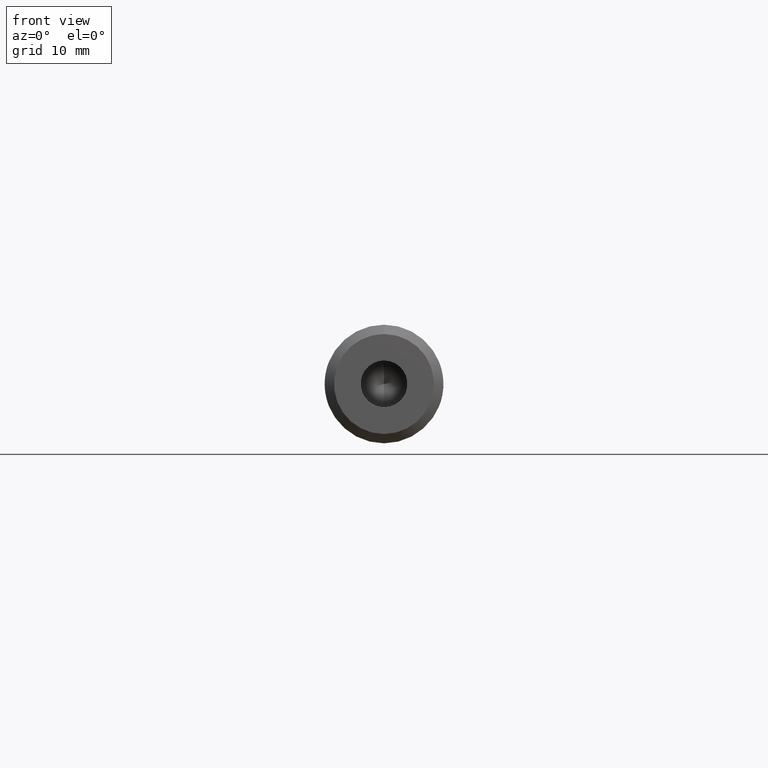
[diagram: clean part render]
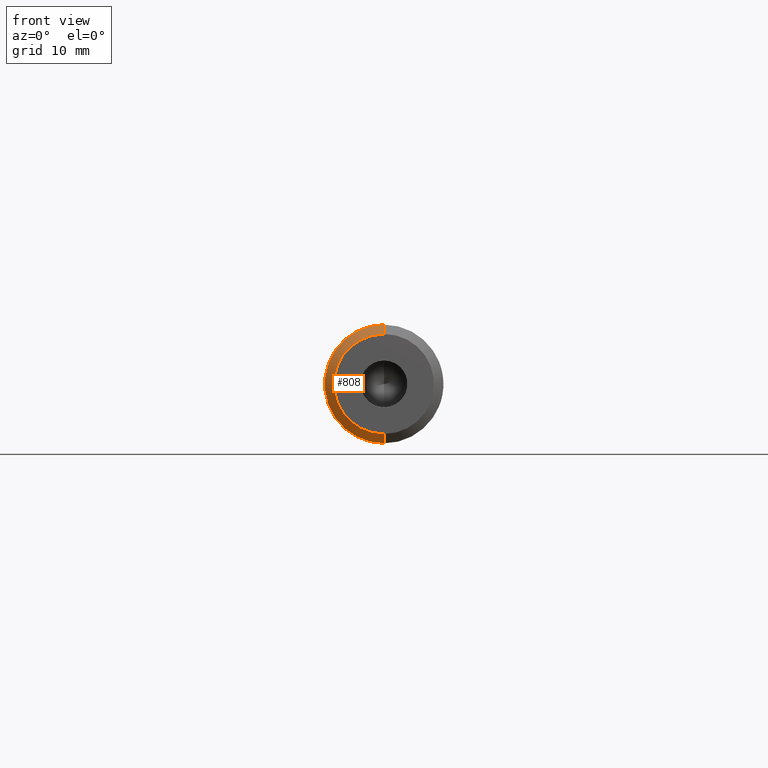
[diagram: same view with one face highlighted and labeled with its STEP entity id]
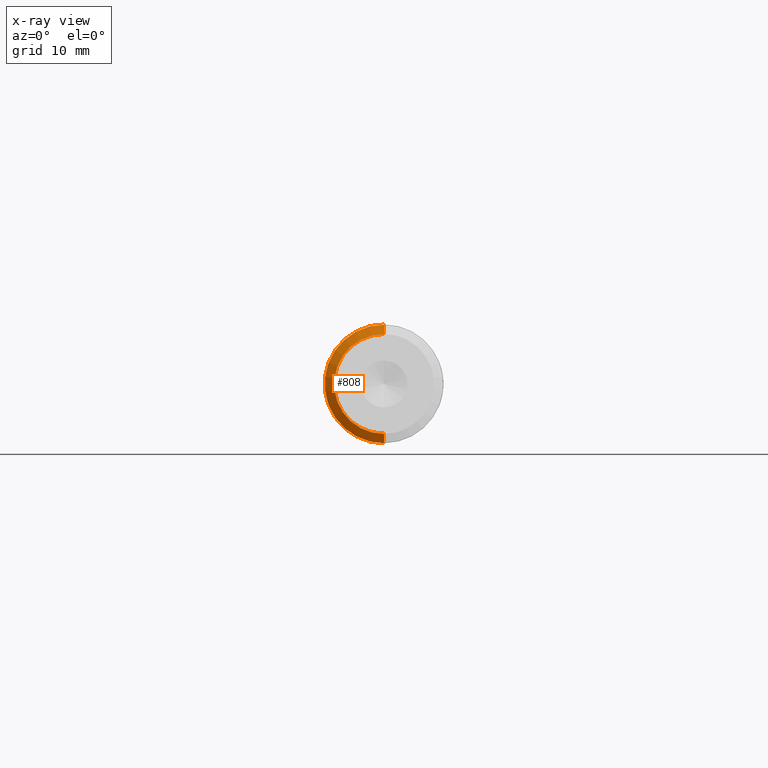
[diagram: x-ray of the same camera — body ghosted, the highlighted face saturated]
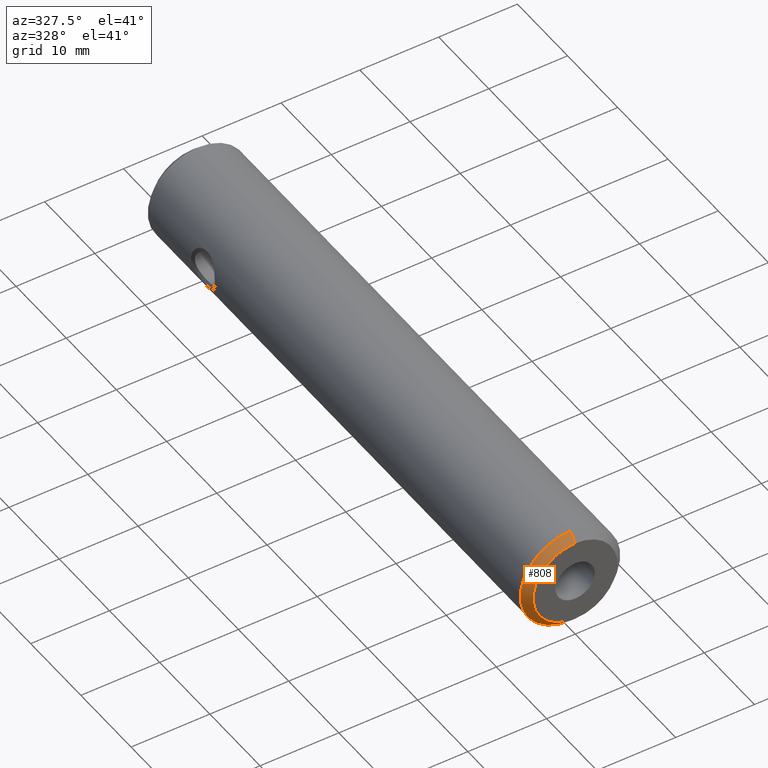
[diagram: same view with one face highlighted and labeled with its STEP entity id]
A machine part, front view. The second image highlights one B-rep face of the part: STEP entity #808.
The next image is the same camera in x-ray: the body ghosted, the highlighted face saturated — about 0% of this face is hidden behind the body in this view.
A second angle (auxiliary view) of the same face is appended — the face is thin or edge-on in the first view.
In plain terms, the highlighted conical surface has half-angle 45 deg.
Its self-contained STEP definition (entity closure, byte-faithful):
#13 = DIRECTION ( 'NONE',  ( -0.0000000000000000000, -1.000000000000000000, -0.0000000000000000000 ) ) ;
#61 = VERTEX_POINT ( 'NONE', #383 ) ;
#92 = VECTOR ( 'NONE', #239, 1000.000000000000000 ) ;
#125 = AXIS2_PLACEMENT_3D ( 'NONE', #451, #604, #368 ) ;
#133 = EDGE_CURVE ( 'NONE', #493, #61, #302, .T. ) ;
#166 = VERTEX_POINT ( 'NONE', #315 ) ;
#168 = DIRECTION ( 'NONE',  ( 0.0000000000000000000, 0.0000000000000000000, -1.000000000000000000 ) ) ;
#190 = LINE ( 'NONE', #538, #290 ) ;
#237 = AXIS2_PLACEMENT_3D ( 'NONE', #246, #871, #792 ) ;
#239 = DIRECTION ( 'NONE',  ( 0.0000000000000000000, 0.7071067811865475700, 0.7071067811865474600 ) ) ;
#240 = CONICAL_SURFACE ( 'NONE', #125, 6.349999999999999600, 0.7853981633974482800 ) ;
#245 = ORIENTED_EDGE ( 'NONE', *, *, #418, .T. ) ;
#246 = CARTESIAN_POINT ( 'NONE',  ( 0.0000000000000000000, -8.673617379884035500E-016, 0.0000000000000000000 ) ) ;
#290 = VECTOR ( 'NONE', #372, 1000.000000000000000 ) ;
#296 = EDGE_CURVE ( 'NONE', #493, #166, #500, .T. ) ;
#302 = LINE ( 'NONE', #398, #92 ) ;
#315 = CARTESIAN_POINT ( 'NONE',  ( 7.164183775012015400E-016, -8.673617379884035500E-016, -5.349999999999999600 ) ) ;
#368 = DIRECTION ( 'NONE',  ( 0.0000000000000000000, 0.0000000000000000000, 1.000000000000000000 ) ) ;
#372 = DIRECTION ( 'NONE',  ( 8.659560562354931600E-017, 0.7071067811865475700, -0.7071067811865474600 ) ) ;
#383 = CARTESIAN_POINT ( 'NONE',  ( 7.776507174585692200E-016, 0.9999999999999991100, 6.349999999999999600 ) ) ;
#386 = EDGE_LOOP ( 'NONE', ( #458, #730, #686, #245 ) ) ;
#398 = CARTESIAN_POINT ( 'NONE',  ( 0.0000000000000000000, 0.9999999999999991100, 6.349999999999999600 ) ) ;
#410 = CARTESIAN_POINT ( 'NONE',  ( 0.0000000000000000000, 0.9999999999999991100, 0.0000000000000000000 ) ) ;
#418 = EDGE_CURVE ( 'NONE', #61, #605, #654, .T. ) ;
#446 = CARTESIAN_POINT ( 'NONE',  ( 0.0000000000000000000, 0.9999999999999991100, -6.349999999999999600 ) ) ;
#451 = CARTESIAN_POINT ( 'NONE',  ( 0.0000000000000000000, 0.9999999999999991100, 0.0000000000000000000 ) ) ;
#458 = ORIENTED_EDGE ( 'NONE', *, *, #1005, .F. ) ;
#493 = VERTEX_POINT ( 'NONE', #893 ) ;
#500 = CIRCLE ( 'NONE', #237, 5.349999999999999600 ) ;
#538 = CARTESIAN_POINT ( 'NONE',  ( 7.776507174585692200E-016, 0.9999999999999991100, -6.349999999999999600 ) ) ;
#604 = DIRECTION ( 'NONE',  ( 0.0000000000000000000, 1.000000000000000000, 0.0000000000000000000 ) ) ;
#605 = VERTEX_POINT ( 'NONE', #446 ) ;
#654 = CIRCLE ( 'NONE', #857, 6.349999999999999600 ) ;
#686 = ORIENTED_EDGE ( 'NONE', *, *, #133, .T. ) ;
#730 = ORIENTED_EDGE ( 'NONE', *, *, #296, .F. ) ;
#792 = DIRECTION ( 'NONE',  ( 0.0000000000000000000, 0.0000000000000000000, -1.000000000000000000 ) ) ;
#808 = ADVANCED_FACE ( 'NONE', ( #925 ), #240, .T. ) ;
#857 = AXIS2_PLACEMENT_3D ( 'NONE', #410, #13, #168 ) ;
#871 = DIRECTION ( 'NONE',  ( -0.0000000000000000000, -1.000000000000000000, -0.0000000000000000000 ) ) ;
#893 = CARTESIAN_POINT ( 'NONE',  ( 0.0000000000000000000, -8.673617379884035500E-016, 5.349999999999999600 ) ) ;
#925 = FACE_OUTER_BOUND ( 'NONE', #386, .T. ) ;
#1005 = EDGE_CURVE ( 'NONE', #166, #605, #190, .T. ) ;